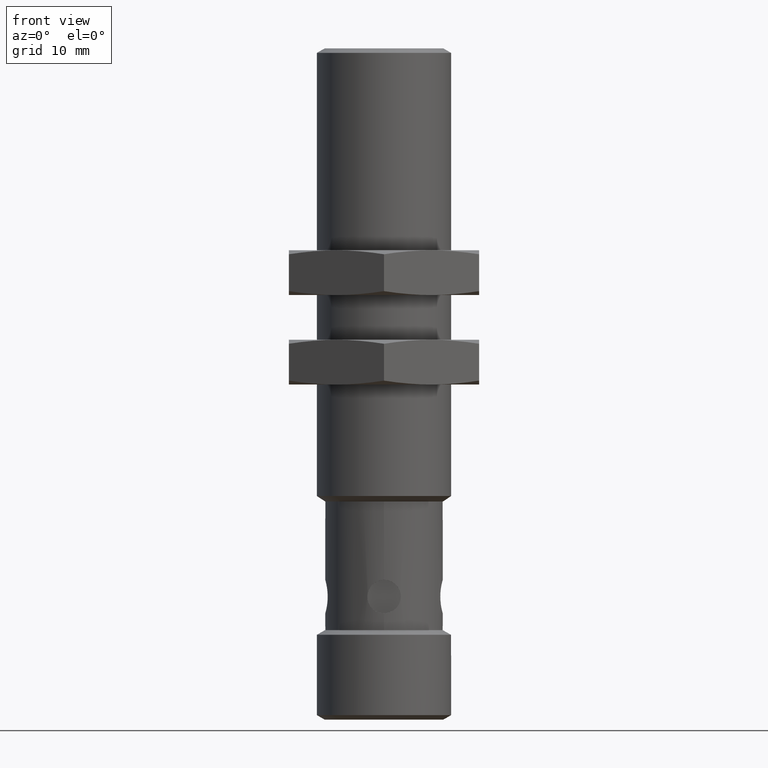
[diagram: clean part render]
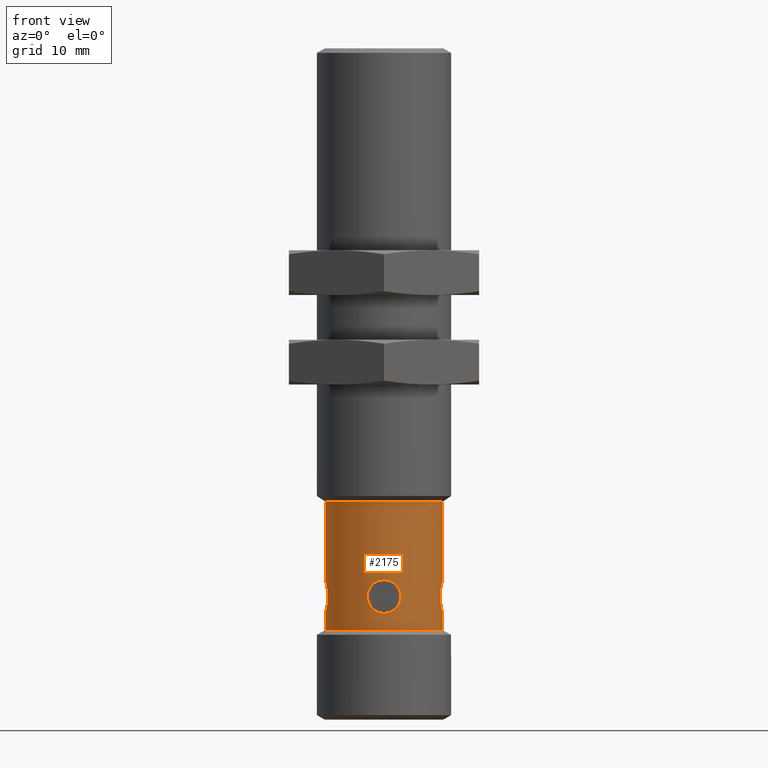
[diagram: same view with one face highlighted and labeled with its STEP entity id]
A machine part, front view. The second image highlights one B-rep face of the part: STEP entity #2175.
In plain terms, the highlighted cylindrical surface (bore or boss wall) has radius 5.25 mm, axis along (-0, -0, -1).
Its self-contained STEP definition (entity closure, byte-faithful):
#49 = CARTESIAN_POINT ( 'NONE',  ( 101.0465345414239238, -34.81639872351348686, -25.33252557877935374 ) ) ;
#80 = CARTESIAN_POINT ( 'NONE',  ( 101.0576156731158761, -34.81601767078161913, -24.91923514826180508 ) ) ;
#90 = DIRECTION ( 'NONE',  ( 3.162034270267259960E-17, -1.000000000000000000, -3.154771537486041677E-17 ) ) ;
#102 = CARTESIAN_POINT ( 'NONE',  ( 101.0459920961614557, -34.81602515718476099, -24.91925065141570528 ) ) ;
#106 = CARTESIAN_POINT ( 'NONE',  ( 101.2521614828830678, -34.87507527211077729, -25.18476038630588931 ) ) ;
#124 = CARTESIAN_POINT ( 'NONE',  ( 101.0691437546658165, -34.81792252336241944, -24.91975936136977410 ) ) ;
#133 = CARTESIAN_POINT ( 'NONE',  ( 100.8474263371435740, -34.81640610766072541, -25.11839771446809877 ) ) ;
#135 = DIRECTION ( 'NONE',  ( 3.162034270267259960E-17, -1.000000000000000000, -3.154771537486041677E-17 ) ) ;
#136 = CARTESIAN_POINT ( 'NONE',  ( 101.2522776615001732, -34.86729014851657382, -25.18437301071612922 ) ) ;
#142 = VERTEX_POINT ( 'NONE', #1699 ) ;
#154 = CARTESIAN_POINT ( 'NONE',  ( 100.8553107218811107, -34.85964573936014688, -25.06902541744251423 ) ) ;
#157 = CARTESIAN_POINT ( 'NONE',  ( 101.2569587038162666, -34.83061907852599859, -25.08663568882430894 ) ) ;
#159 = CARTESIAN_POINT ( 'NONE',  ( 101.0580909638257197, -34.93413287343989992, -25.33262212078331288 ) ) ;
#164 = CARTESIAN_POINT ( 'NONE',  ( 100.8504198711351023, -34.82786466911347389, -25.08985985750335956 ) ) ;
#167 = CARTESIAN_POINT ( 'NONE',  ( 101.2520261884123727, -34.87896722133574201, -25.06665190623320072 ) ) ;
#168 = CARTESIAN_POINT ( 'NONE',  ( 101.0840737183920339, -34.92663657374720998, -25.33055630767763589 ) ) ;
#172 = CARTESIAN_POINT ( 'NONE',  ( 100.8551160767420214, -34.85596216250679902, -25.18217202540528277 ) ) ;
#176 = CARTESIAN_POINT ( 'NONE',  ( 101.2607047126961106, -34.81602152417205787, -25.12178133374017008 ) ) ;
#196 = CARTESIAN_POINT ( 'NONE',  ( 101.1073155386961844, -34.84888314690114441, -25.32564171259526020 ) ) ;
#209 = CARTESIAN_POINT ( 'NONE',  ( 100.8551118088658569, -34.89423027295805468, -25.18215684476686889 ) ) ;
#237 = CARTESIAN_POINT ( 'NONE',  ( 101.0620860119333031, -34.81641470061327226, -25.33250315185388857 ) ) ;
#245 = CARTESIAN_POINT ( 'NONE',  ( 101.0903044741836680, -34.82814625516369489, -25.32944120214886041 ) ) ;
#247 = EDGE_CURVE ( 'NONE', #1357, #1357, #2368, .T. ) ;
#315 = CARTESIAN_POINT ( 'NONE',  ( 101.0068445653193265, -34.83903497732931953, -24.92468295078200313 ) ) ;
#320 = CARTESIAN_POINT ( 'NONE',  ( 101.2530463736854358, -34.89418838171478399, -25.18171450597217031 ) ) ;
#327 = CARTESIAN_POINT ( 'NONE',  ( 101.0982759721212147, -34.83605064541971785, -24.92401512320462587 ) ) ;
#328 = CIRCLE ( 'NONE', #2179, 0.2066929133858346201 ) ;
#332 = FACE_OUTER_BOUND ( 'NONE', #1291, .T. ) ;
#341 = CARTESIAN_POINT ( 'NONE',  ( 101.0900900156090785, -34.82786466911348100, -24.92233608906080633 ) ) ;
#350 = CARTESIAN_POINT ( 'NONE',  ( 101.1049816905651682, -34.84538850319743375, -24.92560984588596540 ) ) ;
#356 = CARTESIAN_POINT ( 'NONE',  ( 101.2575302957562968, -34.92228587510807358, -25.08939178323979391 ) ) ;
#364 = CARTESIAN_POINT ( 'NONE',  ( 101.0834666920447233, -34.92627090427389192, -24.92132349394888635 ) ) ;
#365 = CARTESIAN_POINT ( 'NONE',  ( 100.8474287123686111, -34.93373584360828232, -25.11833888888314092 ) ) ;
#377 = CARTESIAN_POINT ( 'NONE',  ( 101.2601935941673332, -34.81791126157854421, -25.14101947419981187 ) ) ;
#383 = CARTESIAN_POINT ( 'NONE',  ( 100.8493905454288182, -34.82350359156063746, -25.15595042464666520 ) ) ;
#393 = CARTESIAN_POINT ( 'NONE',  ( 100.8549872637557741, -34.85596402480624789, -25.07015180916731723 ) ) ;
#402 = CARTESIAN_POINT ( 'NONE',  ( 100.8478459131139715, -34.93221789516530862, -25.11077142984610333 ) ) ;
#405 = CARTESIAN_POINT ( 'NONE',  ( 101.2605869339282236, -34.81641470061327936, -25.11786386117913494 ) ) ;
#415 = DIRECTION ( 'NONE',  ( -3.162034270267259960E-17, 1.000000000000000000, 3.154771537486041677E-17 ) ) ;
#417 = CARTESIAN_POINT ( 'NONE',  ( 101.0696178094733142, -34.93222802085914225, -25.33207140032645910 ) ) ;
#431 = EDGE_LOOP ( 'NONE', ( #1186 ) ) ;
#480 = CARTESIAN_POINT ( 'NONE',  ( 101.1011862140392310, -34.83903168787300331, -25.32718379261948982 ) ) ;
#490 = CARTESIAN_POINT ( 'NONE',  ( 100.9951894868065239, -34.87115171689635673, -25.32407770080871146 ) ) ;
#558 = FACE_BOUND ( 'NONE', #431, .T. ) ;
#560 = CARTESIAN_POINT ( 'NONE',  ( 101.0928474171091267, -34.91953146569555599, -24.92290134187173933 ) ) ;
#566 = CARTESIAN_POINT ( 'NONE',  ( 101.2559408431973793, -34.91413018764278320, -25.17016312354629193 ) ) ;
#572 = CARTESIAN_POINT ( 'NONE',  ( 101.0499065706899984, -34.93413175311719243, -24.91924433187669763 ) ) ;
#580 = CARTESIAN_POINT ( 'NONE',  ( 101.0616109842291905, -34.93373584360827522, -24.91934493029431508 ) ) ;
#590 = CARTESIAN_POINT ( 'NONE',  ( 101.0898364128045017, -34.92200428905785969, -24.92234198376718979 ) ) ;
#599 = CARTESIAN_POINT ( 'NONE',  ( 100.8521950525675521, -34.83602035657879270, -25.17062732932975067 ) ) ;
#626 = CARTESIAN_POINT ( 'NONE',  ( 100.8521028003364819, -34.91407946805561124, -25.08165649455833091 ) ) ;
#628 = CARTESIAN_POINT ( 'NONE',  ( 101.2521614828830678, -34.87507527211077729, -25.18476038630588931 ) ) ;
#634 = CARTESIAN_POINT ( 'NONE',  ( 100.8560079691832527, -34.87507527211079150, -25.18521586288659719 ) ) ;
#638 = CARTESIAN_POINT ( 'NONE',  ( 101.0073074630797976, -34.91111556689224216, -25.32729108043804800 ) ) ;
#665 = CARTESIAN_POINT ( 'NONE',  ( 101.1054652543611496, -34.84542721392743658, -25.32613262995740655 ) ) ;
#705 = CARTESIAN_POINT ( 'NONE',  ( 101.0070898494436591, -34.83871265188440702, -25.32730439186677884 ) ) ;
#715 = CARTESIAN_POINT ( 'NONE',  ( 101.0026990045291768, -34.84524694386332300, -25.32617761601124684 ) ) ;
#725 = CYLINDRICAL_SURFACE ( 'NONE', #1295, 0.2066929133858346201 ) ;
#741 = B_SPLINE_CURVE_WITH_KNOTS ( 'NONE', 3,
 ( #1122, #2730, #2998, #1585, #1835, #1845, #2760, #638, #2278, #1576, #1349, #1596, #2270, #159, #2073, #417, #2054, #168, #865, #2989, #2063, #2508, #2519, #1806, #2262, #2290, #1116, #1356, #1607, #196, #665, #480, #965, #1684, #245, #947, #2376, #1884, #2830, #237, #1652, #2352, #49, #2808, #2113, #2816, #1896, #705, #715, #956, #2572, #1929, #490, #1905 ),
 .UNSPECIFIED., .T., .F.,
 ( 4, 2, 2, 2, 2, 2, 2, 2, 2, 2, 2, 2, 2, 2, 2, 2, 2, 2, 2, 2, 2, 2, 2, 2, 2, 2, 4 ),
 ( 0.0000000000000000000, 0.0002946034532082289189, 0.0005892069064164578377, 0.0008838103596246866481, 0.001178413812832915675, 0.001767620719248441967, 0.002356827625663968258, 0.002651431078871066896, 0.002946034532078165534, 0.003535241438492454317, 0.003829844891699507852, 0.004124448344906560954, 0.004419051798113613622, 0.004713655251320666290, 0.005302862157734439426, 0.005597465610941174639, 0.005892069064147908986, 0.006186672517354643332, 0.006481275970561376810, 0.006775879423768111157, 0.007070482876974845503, 0.007365086330181580716, 0.007659689783388314195, 0.008248896689801782020, 0.008838103596215252447, 0.009132707049422088275, 0.009427310502628922367 ),
 .UNSPECIFIED. ) ;
#750 = CARTESIAN_POINT ( 'NONE',  ( 100.9947340102257982, -34.87507527211077729, -24.92792418710889635 ) ) ;
#782 = CARTESIAN_POINT ( 'NONE',  ( 101.1007057251781447, -34.83900970227239924, -24.92457031706295112 ) ) ;
#792 = CARTESIAN_POINT ( 'NONE',  ( 101.0174598495551379, -34.92226429246681363, -24.92242346892649252 ) ) ;
#806 = CARTESIAN_POINT ( 'NONE',  ( 101.2543325036297830, -34.90471230724349283, -25.17692768145067816 ) ) ;
#811 = CARTESIAN_POINT ( 'NONE',  ( 101.1050047609356000, -34.90472333029411800, -24.92561568511394654 ) ) ;
#816 = CARTESIAN_POINT ( 'NONE',  ( 101.2529175967055437, -34.89418651941529248, -25.06969428969280855 ) ) ;
#825 = CARTESIAN_POINT ( 'NONE',  ( 100.8557551109248465, -34.86726350580060796, -25.06749601715266351 ) ) ;
#830 = CARTESIAN_POINT ( 'NONE',  ( 100.8543002521915639, -34.84882163237674746, -25.17920237119208338 ) ) ;
#832 = CARTESIAN_POINT ( 'NONE',  ( 101.2520246861504489, -34.86736803953004227, -25.06664688857033241 ) ) ;
#842 = CARTESIAN_POINT ( 'NONE',  ( 101.2527197200772946, -34.85968941656076225, -25.18285183250677406 ) ) ;
#846 = EDGE_LOOP ( 'NONE', ( #1805 ) ) ;
#849 = CARTESIAN_POINT ( 'NONE',  ( 100.8489417472533916, -34.92809488709998078, -25.09986964585362657 ) ) ;
#860 = CARTESIAN_POINT ( 'NONE',  ( 100.8520989052789929, -34.83605064541971785, -25.08167390099114868 ) ) ;
#863 = CARTESIAN_POINT ( 'NONE',  ( 101.2537254946695811, -34.84888314690115863, -25.07263433441626788 ) ) ;
#865 = CARTESIAN_POINT ( 'NONE',  ( 101.0905580898726583, -34.92228587510805937, -25.32944651368196176 ) ) ;
#947 = CARTESIAN_POINT ( 'NONE',  ( 101.0839371122739863, -34.82387963994765556, -25.33047433639831780 ) ) ;
#956 = CARTESIAN_POINT ( 'NONE',  ( 100.9982505575525096, -34.85592027126349990, -25.32496682456817183 ) ) ;
#965 = CARTESIAN_POINT ( 'NONE',  ( 101.0987575612465292, -34.83607107616594334, -25.32774472536001653 ) ) ;
#1008 = CARTESIAN_POINT ( 'NONE',  ( 100.9966330586132415, -34.85972339897215733, -24.92736395371078828 ) ) ;
#1015 = CARTESIAN_POINT ( 'NONE',  ( 101.0384563369099737, -34.93223928264299616, -24.91979151516930457 ) ) ;
#1029 = CARTESIAN_POINT ( 'NONE',  ( 101.0093225437826305, -34.83602035657877138, -24.92411127049319575 ) ) ;
#1040 = CARTESIAN_POINT ( 'NONE',  ( 100.9951209640179144, -34.86729805680134575, -24.92780718042913790 ) ) ;
#1045 = CARTESIAN_POINT ( 'NONE',  ( 101.2553748625123973, -34.91111556689223505, -25.17264241003267600 ) ) ;
#1050 = CARTESIAN_POINT ( 'NONE',  ( 101.1109244556698457, -34.85964573936012556, -24.92722693980674009 ) ) ;
#1063 = CARTESIAN_POINT ( 'NONE',  ( 100.8558716737548906, -34.87118332288581257, -25.06710738396476401 ) ) ;
#1064 = CARTESIAN_POINT ( 'NONE',  ( 101.0540168275933723, -34.75696503589030328, -25.12593304551903017 ) ) ;
#1065 = CARTESIAN_POINT ( 'NONE',  ( 101.2575249842232239, -34.82814625516369489, -25.08964539892869894 ) ) ;
#1073 = CARTESIAN_POINT ( 'NONE',  ( 100.8526581469256342, -34.91111885634855838, -25.07922655832603809 ) ) ;
#1076 = CARTESIAN_POINT ( 'NONE',  ( 101.2607144462887732, -34.81601879110436215, -25.12956801244849814 ) ) ;
#1082 = B_SPLINE_CURVE_WITH_KNOTS ( 'NONE', 3,
 ( #106, #2677, #1774, #2210, #320, #1968, #806, #1045, #566, #1765, #2426, #2192, #2903, #2201, #1996, #1978, #2684, #2921, #356, #2221, #1530, #2695, #1289, #816, #2933, #2005, #167, #832, #1552, #863, #1335, #1095, #2470, #157, #1065, #2040, #1307, #2268, #2942, #405, #176, #1076, #1319, #377, #2032, #2260, #2955, #1822, #2738, #1795, #842, #136, #1543, #628 ),
 .UNSPECIFIED., .T., .F.,
 ( 4, 2, 2, 2, 2, 2, 2, 2, 2, 2, 2, 2, 2, 2, 2, 2, 2, 2, 2, 2, 2, 2, 2, 2, 2, 2, 4 ),
 ( 0.0000000000000000000, 0.0002946034532071288873, 0.0005892069064142577747, 0.0008838103596213866620, 0.001178413812828515549, 0.001767620719243197247, 0.002356827625657878945, 0.002651431078865220010, 0.002946034532072560642, 0.003535241438486939197, 0.003829844891694013116, 0.004124448344901087034, 0.004419051798108161386, 0.004713655251315234870, 0.005302862157729715774, 0.005597465610936803136, 0.005892069064143892233, 0.006186672517350979596, 0.006481275970558067825, 0.006775879423765156055, 0.007070482876972243418, 0.007365086330179332515, 0.007659689783386419877, 0.008248896689800729043, 0.008838103596215037341, 0.009132707049422345014, 0.009427310502629650951 ),
 .UNSPECIFIED. ) ;
#1084 = CARTESIAN_POINT ( 'NONE',  ( 100.8560079691832669, -34.87115171689635673, -25.18521586288659719 ) ) ;
#1093 = CARTESIAN_POINT ( 'NONE',  ( 100.8473199421102322, -34.93412902004951093, -25.12225662191838182 ) ) ;
#1095 = CARTESIAN_POINT ( 'NONE',  ( 101.2552675746938320, -34.83903168787300331, -25.07876365907314309 ) ) ;
#1104 = CARTESIAN_POINT ( 'NONE',  ( 100.8541861285379468, -34.90126739732040306, -25.07309370387294223 ) ) ;
#1116 = CARTESIAN_POINT ( 'NONE',  ( 101.1132979668791876, -34.87896722133573491, -25.32394240633801630 ) ) ;
#1122 = CARTESIAN_POINT ( 'NONE',  ( 100.9951894868065239, -34.87507527211077729, -25.32407770080871146 ) ) ;
#1147 = EDGE_CURVE ( 'NONE', #1767, #1767, #741, .T. ) ;
#1186 = ORIENTED_EDGE ( 'NONE', *, *, #1147, .T. ) ;
#1198 = CARTESIAN_POINT ( 'NONE',  ( 100.9947340102257982, -34.87507527211077729, -24.92792418710889635 ) ) ;
#1234 = VERTEX_POINT ( 'NONE', #750 ) ;
#1243 = CARTESIAN_POINT ( 'NONE',  ( 101.0460595032649138, -34.93375182070809615, -24.91935826391495468 ) ) ;
#1253 = CARTESIAN_POINT ( 'NONE',  ( 101.1068378247198041, -34.84884581501056289, -24.92609747342815751 ) ) ;
#1261 = CARTESIAN_POINT ( 'NONE',  ( 100.9947340102258408, -34.87899882732519785, -24.92792418710889635 ) ) ;
#1284 = CARTESIAN_POINT ( 'NONE',  ( 100.9977930283455407, -34.89423027295806179, -24.92702802679152185 ) ) ;
#1289 = CARTESIAN_POINT ( 'NONE',  ( 101.2537304098751889, -34.90130472921098459, -25.07265266768189704 ) ) ;
#1291 = EDGE_LOOP ( 'NONE', ( #2031 ) ) ;
#1295 = AXIS2_PLACEMENT_3D ( 'NONE', #1604, #415, #2748 ) ;
#1304 = CARTESIAN_POINT ( 'NONE',  ( 100.8541812555024961, -34.84884581501054868, -25.07311204839257357 ) ) ;
#1307 = CARTESIAN_POINT ( 'NONE',  ( 101.2590314331614678, -34.82205565712156670, -25.09939814619134069 ) ) ;
#1317 = CARTESIAN_POINT ( 'NONE',  ( 100.8478431434441234, -34.81792252336241233, -25.11080611844658605 ) ) ;
#1319 = CARTESIAN_POINT ( 'NONE',  ( 101.2606093608537208, -34.81639872351346554, -25.13341533168848585 ) ) ;
#1323 = CARTESIAN_POINT ( 'NONE',  ( 100.8474420459892542, -34.93375182070807483, -25.13389036984749580 ) ) ;
#1333 = CARTESIAN_POINT ( 'NONE',  ( 100.8526540991372968, -34.83900970227237792, -25.07924414793423296 ) ) ;
#1335 = CARTESIAN_POINT ( 'NONE',  ( 101.2542164120317807, -34.84542721392745079, -25.07448461875125290 ) ) ;
#1349 = CARTESIAN_POINT ( 'NONE',  ( 101.0244700643884528, -34.92664695266089581, -25.33062781141768838 ) ) ;
#1353 = CARTESIAN_POINT ( 'NONE',  ( 100.8560079691832527, -34.87899882732521917, -25.18521586288660075 ) ) ;
#1356 = CARTESIAN_POINT ( 'NONE',  ( 101.1133029845420879, -34.86736803953004937, -25.32394090407612453 ) ) ;
#1357 = VERTEX_POINT ( 'NONE', #1666 ) ;
#1373 = CARTESIAN_POINT ( 'NONE',  ( 100.8554453447600707, -34.89046112766079943, -25.18330859779554487 ) ) ;
#1374 = ORIENTED_EDGE ( 'NONE', *, *, #247, .T. ) ;
#1419 = FACE_OUTER_BOUND ( 'NONE', #1597, .T. ) ;
#1476 = CARTESIAN_POINT ( 'NONE',  ( 101.2521614828830678, -34.87507527211077729, -25.18476038630588931 ) ) ;
#1485 = CARTESIAN_POINT ( 'NONE',  ( 101.1128475102516546, -34.88278250469151942, -24.92778938240039110 ) ) ;
#1498 = CARTESIAN_POINT ( 'NONE',  ( 101.0381939346384570, -34.81759750054960989, -24.91972297190301688 ) ) ;
#1517 = CARTESIAN_POINT ( 'NONE',  ( 101.0240106326295830, -34.92665646969506810, -24.92130440131695579 ) ) ;
#1530 = CARTESIAN_POINT ( 'NONE',  ( 101.2552716629185880, -34.91114084194916956, -25.07878123932698955 ) ) ;
#1543 = CARTESIAN_POINT ( 'NONE',  ( 101.2521614828830678, -34.87115171689635673, -25.18476038630588221 ) ) ;
#1552 = CARTESIAN_POINT ( 'NONE',  ( 101.2525083448118011, -34.85955956315729054, -25.06820563865840157 ) ) ;
#1562 = CARTESIAN_POINT ( 'NONE',  ( 100.8536936279603111, -34.84538850319743375, -25.07496818254723436 ) ) ;
#1564 = EDGE_LOOP ( 'NONE', ( #1374 ) ) ;
#1571 = CARTESIAN_POINT ( 'NONE',  ( 100.8481985593462014, -34.93109161184295175, -25.14526240737375673 ) ) ;
#1576 = CARTESIAN_POINT ( 'NONE',  ( 101.0179138332644300, -34.92225361778051251, -25.32952362484046205 ) ) ;
#1577 = DIRECTION ( 'NONE',  ( -1.000000000000000000, 0.0000000000000000000, 0.0000000000000000000 ) ) ;
#1581 = FACE_BOUND ( 'NONE', #1564, .T. ) ;
#1582 = CARTESIAN_POINT ( 'NONE',  ( 100.8493881833912980, -34.92665646969506099, -25.15593924048285501 ) ) ;
#1585 = CARTESIAN_POINT ( 'NONE',  ( 100.9970898184255503, -34.89042714524938305, -25.32463356587850001 ) ) ;
#1596 = CARTESIAN_POINT ( 'NONE',  ( 101.0386681549495336, -34.93255304367193759, -25.33217895857007917 ) ) ;
#1597 = EDGE_LOOP ( 'NONE', ( #2180 ) ) ;
#1604 = CARTESIAN_POINT ( 'NONE',  ( 101.0540168275933723, -34.44200440596904400, -25.12593304551903017 ) ) ;
#1607 = CARTESIAN_POINT ( 'NONE',  ( 101.1117442344539938, -34.85955956315731896, -25.32442456273751574 ) ) ;
#1652 = CARTESIAN_POINT ( 'NONE',  ( 101.0581685393722324, -34.81602152417205787, -25.33262093062176845 ) ) ;
#1666 = CARTESIAN_POINT ( 'NONE',  ( 100.8560079691832385, -34.87507527211077729, -25.18521586288660075 ) ) ;
#1676 = CARTESIAN_POINT ( 'NONE',  ( 100.9951894868065239, -34.87507527211077729, -25.32407770080871856 ) ) ;
#1684 = CARTESIAN_POINT ( 'NONE',  ( 101.0933141842880616, -34.83061907852599148, -25.32887492174194222 ) ) ;
#1699 = CARTESIAN_POINT ( 'NONE',  ( 100.8473239142075357, -35.20972094415801479, -25.12593304551903017 ) ) ;
#1730 = CARTESIAN_POINT ( 'NONE',  ( 101.1068561692395207, -34.90126739732040306, -24.92610234646359757 ) ) ;
#1740 = CARTESIAN_POINT ( 'NONE',  ( 101.1007233147863218, -34.91111885634855838, -24.92457436485125299 ) ) ;
#1749 = CARTESIAN_POINT ( 'NONE',  ( 101.0615521586443748, -34.81640610766073962, -24.91934255506924245 ) ) ;
#1761 = CARTESIAN_POINT ( 'NONE',  ( 100.9977778477071553, -34.85596216250678481, -24.92703229466766146 ) ) ;
#1765 = CARTESIAN_POINT ( 'NONE',  ( 101.2576074069148717, -34.92225361778051962, -25.16203603984795478 ) ) ;
#1766 = VERTEX_POINT ( 'NONE', #1476 ) ;
#1767 = VERTEX_POINT ( 'NONE', #1676 ) ;
#1769 = FACE_BOUND ( 'NONE', #1928, .T. ) ;
#1771 = CARTESIAN_POINT ( 'NONE',  ( 101.1124538559597568, -34.86726350580060085, -24.92767132885051851 ) ) ;
#1774 = CARTESIAN_POINT ( 'NONE',  ( 101.2522775994562068, -34.88285248742020173, -25.18437316448085994 ) ) ;
#1783 = CARTESIAN_POINT ( 'NONE',  ( 100.8494072760232854, -34.92627090427389192, -25.09648318106763654 ) ) ;
#1793 = CARTESIAN_POINT ( 'NONE',  ( 100.8538189429317811, -34.84543823697808307, -25.17738817098528514 ) ) ;
#1795 = CARTESIAN_POINT ( 'NONE',  ( 101.2530506066425176, -34.85592027126349279, -25.18169931555994978 ) ) ;
#1802 = CARTESIAN_POINT ( 'NONE',  ( 100.8558909625034943, -34.86729805680135996, -25.18482890909450589 ) ) ;
#1805 = ORIENTED_EDGE ( 'NONE', *, *, #2797, .T. ) ;
#1806 = CARTESIAN_POINT ( 'NONE',  ( 101.1102555834196011, -34.89418651941528537, -25.32483381463125838 ) ) ;
#1809 = CARTESIAN_POINT ( 'NONE',  ( 100.8553930914258672, -34.89059098106424983, -25.06866222099710129 ) ) ;
#1822 = CARTESIAN_POINT ( 'NONE',  ( 101.2553881739410997, -34.83871265188437860, -25.17286002366873277 ) ) ;
#1831 = CARTESIAN_POINT ( 'NONE',  ( 100.8538907914542335, -34.90490360035829553, -25.17771119375682076 ) ) ;
#1835 = CARTESIAN_POINT ( 'NONE',  ( 100.9982353671402535, -34.89418838171479820, -25.32496259161105456 ) ) ;
#1845 = CARTESIAN_POINT ( 'NONE',  ( 101.0012068894844788, -34.90132891184480712, -25.32577158530757089 ) ) ;
#1884 = CARTESIAN_POINT ( 'NONE',  ( 101.0733496993380527, -34.81905688093291218, -25.33175172651925422 ) ) ;
#1896 = CARTESIAN_POINT ( 'NONE',  ( 101.0179279149115672, -34.82788625175477648, -25.32952614655541623 ) ) ;
#1905 = CARTESIAN_POINT ( 'NONE',  ( 100.9951894868065239, -34.87507527211077729, -25.32407770080871146 ) ) ;
#1928 = EDGE_LOOP ( 'NONE', ( #2660 ) ) ;
#1929 = CARTESIAN_POINT ( 'NONE',  ( 100.9955768623962626, -34.86729014851657382, -25.32419387942582034 ) ) ;
#1934 = B_SPLINE_CURVE_WITH_KNOTS ( 'NONE', 3,
 ( #1198, #2434, #1040, #1008, #1761, #2662, #1964, #315, #1029, #2217, #2890, #1498, #102, #80, #1749, #124, #2674, #2681, #341, #327, #782, #350, #1253, #1974, #1050, #1771, #2916, #1485, #1983, #1730, #811, #1740, #2458, #560, #590, #364, #2000, #2189, #2650, #580, #2423, #572, #1243, #1015, #2446, #1517, #792, #2199, #2691, #1284, #2928, #2206, #1261, #2900 ),
 .UNSPECIFIED., .T., .F.,
 ( 4, 2, 2, 2, 2, 2, 2, 2, 2, 2, 2, 2, 2, 2, 2, 2, 2, 2, 2, 2, 2, 2, 2, 2, 2, 2, 4 ),
 ( 0.0000000000000000000, 0.0002946034532082149869, 0.0005892069064164299737, 0.0008838103596246449064, 0.001178413812832859947, 0.001767620719248407272, 0.002356827625663954380, 0.002651431078871063426, 0.002946034532078172039, 0.003535241438492482506, 0.003829844891699199071, 0.004124448344905915637, 0.004419051798112632636, 0.004713655251319348767, 0.005302862157732450565, 0.005597465610939153687, 0.005892069064145857675, 0.006186672517352560796, 0.006481275970559264785, 0.006775879423765967906, 0.007070482876972671894, 0.007365086330179375883, 0.007659689783386079004, 0.008248896689800671797, 0.008838103596215264590, 0.009132707049422409198, 0.009427310502629553807 ),
 .UNSPECIFIED. ) ;
#1936 = AXIS2_PLACEMENT_3D ( 'NONE', #1064, #135, #2709 ) ;
#1964 = CARTESIAN_POINT ( 'NONE',  ( 101.0025617021271387, -34.84543823697807596, -24.92573516085746377 ) ) ;
#1968 = CARTESIAN_POINT ( 'NONE',  ( 101.2538553673818882, -34.90132891184480002, -25.17874298362797703 ) ) ;
#1974 = CARTESIAN_POINT ( 'NONE',  ( 101.1097980639450640, -34.85596402480625500, -24.92690348168142478 ) ) ;
#1978 = CARTESIAN_POINT ( 'NONE',  ( 101.2601551824007799, -34.93222802085912804, -25.11033206363905279 ) ) ;
#1983 = CARTESIAN_POINT ( 'NONE',  ( 101.1112876521152515, -34.89059098106422141, -24.92730930935157829 ) ) ;
#1992 = CARTESIAN_POINT ( 'NONE',  ( 101.0540168275933723, -35.20972094415801479, -25.12593304551903017 ) ) ;
#1996 = CARTESIAN_POINT ( 'NONE',  ( 101.2605894444160555, -34.93374443656085049, -25.11792268114674442 ) ) ;
#2000 = CARTESIAN_POINT ( 'NONE',  ( 101.0800802272587902, -34.92809488709998078, -24.92085796517902807 ) ) ;
#2002 = CARTESIAN_POINT ( 'NONE',  ( 100.8554477357851482, -34.85972339897216443, -25.18331681449916815 ) ) ;
#2005 = CARTESIAN_POINT ( 'NONE',  ( 101.2521436445932750, -34.88288703842094662, -25.06704027035829085 ) ) ;
#2020 = CIRCLE ( 'NONE', #1936, 0.2066929133858346201 ) ;
#2021 = CARTESIAN_POINT ( 'NONE',  ( 100.8473189303361721, -34.81601767078161203, -25.12233419999649087 ) ) ;
#2030 = CARTESIAN_POINT ( 'NONE',  ( 100.8558731644747297, -34.88278250469150521, -25.06710236286069460 ) ) ;
#2031 = ORIENTED_EDGE ( 'NONE', *, *, #2111, .T. ) ;
#2032 = CARTESIAN_POINT ( 'NONE',  ( 101.2598789994097501, -34.81905893237862415, -25.14478907874557834 ) ) ;
#2038 = CARTESIAN_POINT ( 'NONE',  ( 100.8505072510008489, -34.92226429246681363, -25.16249002355726461 ) ) ;
#2040 = CARTESIAN_POINT ( 'NONE',  ( 101.2585581184726635, -34.82387963994765556, -25.09601276083840560 ) ) ;
#2054 = CARTESIAN_POINT ( 'NONE',  ( 101.0733095310083485, -34.93110625727558016, -25.33175526480816941 ) ) ;
#2059 = CARTESIAN_POINT ( 'NONE',  ( 100.8558909001060897, -34.88286039570498076, -25.18482875547283939 ) ) ;
#2063 = CARTESIAN_POINT ( 'NONE',  ( 101.1011686337853916, -34.91114084194917666, -25.32718788084428496 ) ) ;
#2073 = CARTESIAN_POINT ( 'NONE',  ( 101.0620271919656403, -34.93374443656080786, -25.33250566234168488 ) ) ;
#2089 = CARTESIAN_POINT ( 'NONE',  ( 100.8560079691832527, -34.87507527211079150, -25.18521586288659719 ) ) ;
#2111 = EDGE_CURVE ( 'NONE', #2261, #2261, #2020, .T. ) ;
#2113 = CARTESIAN_POINT ( 'NONE',  ( 101.0351607943667744, -34.81905893237863125, -25.33179521733537953 ) ) ;
#2175 = ADVANCED_FACE ( 'NONE', ( #332, #1419, #558, #1769, #2815, #1581 ), #725, .T. ) ;
#2179 = AXIS2_PLACEMENT_3D ( 'NONE', #1992, #90, #1577 ) ;
#2180 = ORIENTED_EDGE ( 'NONE', *, *, #2389, .F. ) ;
#2189 = CARTESIAN_POINT ( 'NONE',  ( 101.0728763697515120, -34.93109366328862109, -24.92007045287977363 ) ) ;
#2192 = CARTESIAN_POINT ( 'NONE',  ( 101.2602627406443929, -34.93255304367193759, -25.14128171816287960 ) ) ;
#2199 = CARTESIAN_POINT ( 'NONE',  ( 101.0066269216490298, -34.91143789233714756, -24.92467013978933821 ) ) ;
#2201 = CARTESIAN_POINT ( 'NONE',  ( 101.2607059028576515, -34.93413287343992124, -25.12185890928658694 ) ) ;
#2206 = CARTESIAN_POINT ( 'NONE',  ( 100.9951211176395560, -34.88286039570499497, -24.92780711803177596 ) ) ;
#2210 = CARTESIAN_POINT ( 'NONE',  ( 101.2527173479528386, -34.89042714524939015, -25.18286005468683797 ) ) ;
#2217 = CARTESIAN_POINT ( 'NONE',  ( 101.0174457737439013, -34.82789692644104917, -24.92242602301541865 ) ) ;
#2221 = CARTESIAN_POINT ( 'NONE',  ( 101.2558324425075398, -34.91409989880183673, -25.08120970929602223 ) ) ;
#2230 = CARTESIAN_POINT ( 'NONE',  ( 100.8493249908359104, -34.82351397047431618, -25.09634676380306928 ) ) ;
#2243 = CARTESIAN_POINT ( 'NONE',  ( 100.8473344334900617, -34.81602515718476809, -25.13395777695092903 ) ) ;
#2257 = CARTESIAN_POINT ( 'NONE',  ( 100.8504257658415497, -34.92200428905787390, -25.09011346030792211 ) ) ;
#2260 = CARTESIAN_POINT ( 'NONE',  ( 101.2587139298053955, -34.82349407452649359, -25.15546861915823129 ) ) ;
#2261 = VERTEX_POINT ( 'NONE', #2661 ) ;
#2262 = CARTESIAN_POINT ( 'NONE',  ( 101.1113812283768993, -34.89050480486142192, -25.32450776723199937 ) ) ;
#2266 = CARTESIAN_POINT ( 'NONE',  ( 100.8478067539772951, -34.81759750054960278, -25.14175593847395618 ) ) ;
#2268 = CARTESIAN_POINT ( 'NONE',  ( 101.2598355085936106, -34.81905688093292639, -25.10660017377430009 ) ) ;
#2270 = CARTESIAN_POINT ( 'NONE',  ( 101.0464673819527803, -34.93412538703678649, -25.33263334599622141 ) ) ;
#2278 = CARTESIAN_POINT ( 'NONE',  ( 101.0097867495661461, -34.91413018764278320, -25.32785706112300872 ) ) ;
#2290 = CARTESIAN_POINT ( 'NONE',  ( 101.1129096027540584, -34.88288703842092531, -25.32405986251890440 ) ) ;
#2352 = CARTESIAN_POINT ( 'NONE',  ( 101.0503818606639186, -34.81601879110436215, -25.33263066421443455 ) ) ;
#2368 = B_SPLINE_CURVE_WITH_KNOTS ( 'NONE', 3,
 ( #634, #1084, #1802, #2002, #172, #830, #1793, #2734, #599, #2480, #383, #2266, #2243, #2021, #133, #1317, #2959, #2230, #164, #860, #1333, #1562, #1304, #393, #154, #825, #1063, #2030, #1809, #1104, #2700, #1073, #626, #2467, #2257, #1783, #849, #2498, #402, #365, #1093, #2726, #1323, #2974, #1571, #1582, #2038, #2757, #1831, #209, #1373, #2059, #1353, #2089 ),
 .UNSPECIFIED., .T., .F.,
 ( 4, 2, 2, 2, 2, 2, 2, 2, 2, 2, 2, 2, 2, 2, 2, 2, 2, 2, 2, 2, 2, 2, 2, 2, 2, 2, 4 ),
 ( 0.0000000000000000000, 0.0002946034532072321034, 0.0005892069064144642068, 0.0008838103596216963101, 0.001178413812828928414, 0.001767620719243392620, 0.002356827625657856827, 0.002651431078865255139, 0.002946034532072653450, 0.003535241438487582780, 0.003829844891695026194, 0.004124448344902469608, 0.004419051798109913456, 0.004713655251317356437, 0.005302862157731911066, 0.005597465610938966336, 0.005892069064146020739, 0.006186672517353076876, 0.006481275970560131279, 0.006775879423767187416, 0.007070482876974242686, 0.007365086330181297089, 0.007659689783388353226, 0.008248896689802023147, 0.008838103596215693067, 0.009132707049422678081, 0.009427310502629666564 ),
 .UNSPECIFIED. ) ;
#2376 = CARTESIAN_POINT ( 'NONE',  ( 101.0805517269209872, -34.82205565712155959, -25.33094765108713631 ) ) ;
#2383 = EDGE_CURVE ( 'NONE', #1234, #1234, #1934, .T. ) ;
#2389 = EDGE_CURVE ( 'NONE', #142, #142, #328, .T. ) ;
#2423 = CARTESIAN_POINT ( 'NONE',  ( 101.0576932511939958, -34.93412902004951093, -24.91923616003585096 ) ) ;
#2426 = CARTESIAN_POINT ( 'NONE',  ( 101.2587115934920519, -34.92664695266091712, -25.15547980872394263 ) ) ;
#2434 = CARTESIAN_POINT ( 'NONE',  ( 100.9947340102257556, -34.87115171689633542, -24.92792418710889635 ) ) ;
#2446 = CARTESIAN_POINT ( 'NONE',  ( 101.0346874657386564, -34.93109161184293043, -24.92011477727183077 ) ) ;
#2458 = CARTESIAN_POINT ( 'NONE',  ( 101.0982933785540467, -34.91407946805560414, -24.92401901826215749 ) ) ;
#2467 = CARTESIAN_POINT ( 'NONE',  ( 100.8509851239460744, -34.91953146569555599, -25.08710245600325450 ) ) ;
#2470 = CARTESIAN_POINT ( 'NONE',  ( 101.2558285074344155, -34.83607107616596466, -25.08119231186588749 ) ) ;
#2480 = CARTESIAN_POINT ( 'NONE',  ( 100.8505098050897573, -34.82789692644103496, -25.16250409936853671 ) ) ;
#2498 = CARTESIAN_POINT ( 'NONE',  ( 100.8481542349540945, -34.93109366328862109, -25.10707350336088695 ) ) ;
#2508 = CARTESIAN_POINT ( 'NONE',  ( 101.1054421974789079, -34.90476204102408531, -25.32613852222007367 ) ) ;
#2519 = CARTESIAN_POINT ( 'NONE',  ( 101.1072972054305126, -34.90130472921098459, -25.32564662780088227 ) ) ;
#2572 = CARTESIAN_POINT ( 'NONE',  ( 100.9970980406056071, -34.85968941656078357, -25.32463593800300572 ) ) ;
#2650 = CARTESIAN_POINT ( 'NONE',  ( 101.0691784432662388, -34.93221789516530862, -24.91976213103956894 ) ) ;
#2660 = ORIENTED_EDGE ( 'NONE', *, *, #2383, .T. ) ;
#2661 = CARTESIAN_POINT ( 'NONE',  ( 100.8473239142075357, -34.75696503589030328, -25.12593304551903017 ) ) ;
#2662 = CARTESIAN_POINT ( 'NONE',  ( 101.0007475019203014, -34.84882163237676167, -24.92621647011724306 ) ) ;
#2674 = CARTESIAN_POINT ( 'NONE',  ( 101.0728361933917512, -34.81904428694598863, -24.92006700696697763 ) ) ;
#2677 = CARTESIAN_POINT ( 'NONE',  ( 101.2521614828830820, -34.87899882732519785, -25.18476038630589287 ) ) ;
#2681 = CARTESIAN_POINT ( 'NONE',  ( 101.0836031093093510, -34.82351397047432329, -24.92124120876158955 ) ) ;
#2684 = CARTESIAN_POINT ( 'NONE',  ( 101.2598390468825045, -34.93110625727558016, -25.10664034210401141 ) ) ;
#2691 = CARTESIAN_POINT ( 'NONE',  ( 101.0022386793555427, -34.90490360035825290, -24.92580700937996241 ) ) ;
#2695 = CARTESIAN_POINT ( 'NONE',  ( 101.2542223042943590, -34.90476204102409952, -25.07450767563344840 ) ) ;
#2700 = CARTESIAN_POINT ( 'NONE',  ( 100.8536994671883349, -34.90472333029413221, -25.07494511217677058 ) ) ;
#2709 = DIRECTION ( 'NONE',  ( -1.000000000000000000, 0.0000000000000000000, 0.0000000000000000000 ) ) ;
#2726 = CARTESIAN_POINT ( 'NONE',  ( 100.8473281139510647, -34.93413175311719243, -25.13004330242236861 ) ) ;
#2730 = CARTESIAN_POINT ( 'NONE',  ( 100.9951894868065239, -34.87899882732521206, -25.32407770080871146 ) ) ;
#2734 = CARTESIAN_POINT ( 'NONE',  ( 100.8527667328563098, -34.83903497732931953, -25.17310530779305466 ) ) ;
#2738 = CARTESIAN_POINT ( 'NONE',  ( 101.2542613980856601, -34.84524694386330168, -25.17725086858332872 ) ) ;
#2748 = DIRECTION ( 'NONE',  ( -1.000000000000000000, 0.0000000000000000000, 0.0000000000000000000 ) ) ;
#2757 = CARTESIAN_POINT ( 'NONE',  ( 100.8527539218636946, -34.91143789233718309, -25.17332295146332655 ) ) ;
#2760 = CARTESIAN_POINT ( 'NONE',  ( 101.0030221916617421, -34.90471230724348572, -25.32624872155541951 ) ) ;
#2797 = EDGE_CURVE ( 'NONE', #1766, #1766, #1082, .T. ) ;
#2808 = CARTESIAN_POINT ( 'NONE',  ( 101.0389303989125551, -34.81791126157855132, -25.33210981209300172 ) ) ;
#2815 = FACE_BOUND ( 'NONE', #846, .T. ) ;
#2816 = CARTESIAN_POINT ( 'NONE',  ( 101.0244812539541357, -34.82349407452649359, -25.33063014773103916 ) ) ;
#2830 = CARTESIAN_POINT ( 'NONE',  ( 101.0696524916132688, -34.81793264905625307, -25.33206855089780163 ) ) ;
#2890 = CARTESIAN_POINT ( 'NONE',  ( 101.0239994484657728, -34.82350359156064457, -24.92130676335446182 ) ) ;
#2900 = CARTESIAN_POINT ( 'NONE',  ( 100.9947340102257982, -34.87507527211077729, -24.92792418710889635 ) ) ;
#2903 = CARTESIAN_POINT ( 'NONE',  ( 101.2607171280705813, -34.93412538703680781, -25.13348249115958666 ) ) ;
#2916 = CARTESIAN_POINT ( 'NONE',  ( 101.1128424891476101, -34.87118332288581257, -24.92778789168054487 ) ) ;
#2921 = CARTESIAN_POINT ( 'NONE',  ( 101.2586400897519638, -34.92663657374723840, -25.09587615472037569 ) ) ;
#2928 = CARTESIAN_POINT ( 'NONE',  ( 100.9966412753168896, -34.89046112766078522, -24.92736156268572856 ) ) ;
#2933 = CARTESIAN_POINT ( 'NONE',  ( 101.2525915493063451, -34.89050480486142902, -25.06856864473546054 ) ) ;
#2942 = CARTESIAN_POINT ( 'NONE',  ( 101.2601523329721402, -34.81793264905623886, -25.11029738149911594 ) ) ;
#2955 = CARTESIAN_POINT ( 'NONE',  ( 101.2576099286297620, -34.82788625175475516, -25.16202195820080334 ) ) ;
#2959 = CARTESIAN_POINT ( 'NONE',  ( 100.8481507890413411, -34.81904428694597442, -25.10711367972065489 ) ) ;
#2974 = CARTESIAN_POINT ( 'NONE',  ( 100.8478752972436610, -34.93223928264301037, -25.14149353620242167 ) ) ;
#2989 = CARTESIAN_POINT ( 'NONE',  ( 101.0987401638163732, -34.91409989880182962, -25.32774866043321538 ) ) ;
#2998 = CARTESIAN_POINT ( 'NONE',  ( 100.9955767086315603, -34.88285248742023725, -25.32419381738185749 ) ) ;